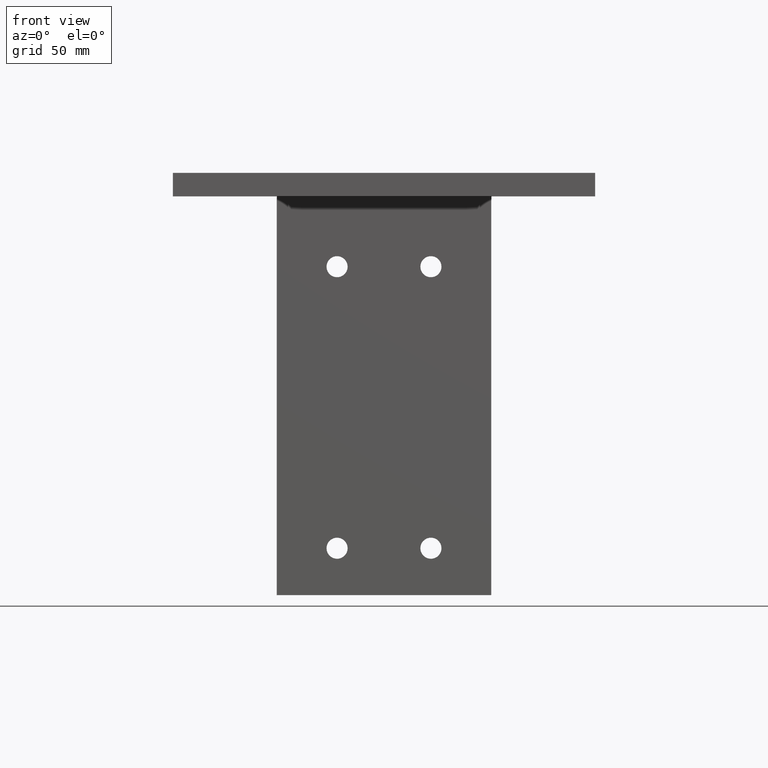
[diagram: clean part render]
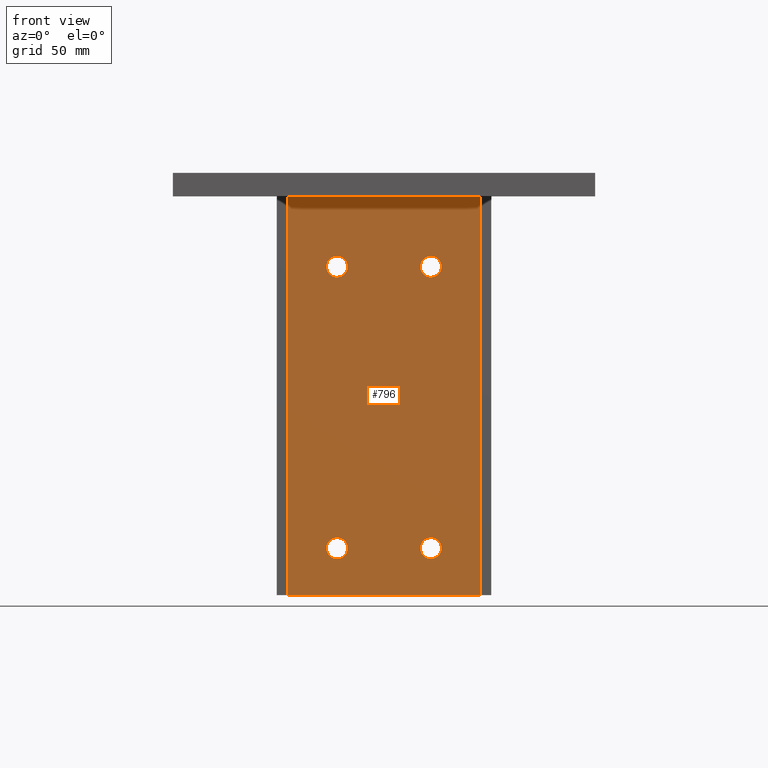
[diagram: same view with one face highlighted and labeled with its STEP entity id]
A machine part, front view. The second image highlights one B-rep face of the part: STEP entity #796.
In plain terms, the highlighted planar face has unit normal (0, 1, 0).
Its self-contained STEP definition (entity closure, byte-faithful):
#200 = EDGE_CURVE ( 'NONE', #849, #850, #1151, .T. ) ;
#203 = EDGE_CURVE ( 'NONE', #862, #861, #887, .T. ) ;
#209 = EDGE_CURVE ( 'NONE', #841, #848, #1077, .T. ) ;
#210 = EDGE_CURVE ( 'NONE', #848, #845, #943, .T. ) ;
#218 = EDGE_CURVE ( 'NONE', #839, #236, #830, .T. ) ;
#236 = VERTEX_POINT ( 'NONE', #1263 ) ;
#246 = CARTESIAN_POINT ( 'NONE',  ( -61.00000000000000000, 30.00000000000000000, 0.0000000000000000000 ) ) ;
#247 = DIRECTION ( 'NONE',  ( -0.0000000000000000000, 0.0000000000000000000, -1.000000000000000000 ) ) ;
#248 = DIRECTION ( 'NONE',  ( 1.000000000000000000, 0.0000000000000000000, 0.0000000000000000000 ) ) ;
#262 = CARTESIAN_POINT ( 'NONE',  ( 0.0000000000000000000, 85.00000000000000000, 0.0000000000000000000 ) ) ;
#263 = DIRECTION ( 'NONE',  ( 0.0000000000000000000, 1.000000000000000000, 0.0000000000000000000 ) ) ;
#268 = CARTESIAN_POINT ( 'NONE',  ( -41.00000000000000000, 170.0000000000000000, 0.0000000000000000000 ) ) ;
#269 = DIRECTION ( 'NONE',  ( -1.000000000000000000, -0.0000000000000000000, -0.0000000000000000000 ) ) ;
#273 = CARTESIAN_POINT ( 'NONE',  ( -21.00000000000000000, 150.0000000000000000, 0.0000000000000000000 ) ) ;
#274 = DIRECTION ( 'NONE',  ( -0.0000000000000000000, 0.0000000000000000000, -1.000000000000000000 ) ) ;
#275 = DIRECTION ( 'NONE',  ( 1.000000000000000000, 0.0000000000000000000, 0.0000000000000000000 ) ) ;
#276 = CARTESIAN_POINT ( 'NONE',  ( -25.50000000000000400, 150.0000000000000000, 0.0000000000000000000 ) ) ;
#315 = PLANE ( 'NONE',  #1305 ) ;
#316 = CARTESIAN_POINT ( 'NONE',  ( -82.00000000000000000, 0.0000000000000000000, 0.0000000000000000000 ) ) ;
#317 = DIRECTION ( 'NONE',  ( 0.0000000000000000000, 0.0000000000000000000, 1.000000000000000000 ) ) ;
#318 = DIRECTION ( 'NONE',  ( 1.000000000000000000, 0.0000000000000000000, 0.0000000000000000000 ) ) ;
#321 = FACE_BOUND ( 'NONE', #1155, .T. ) ;
#322 = FACE_BOUND ( 'NONE', #1158, .T. ) ;
#323 = FACE_OUTER_BOUND ( 'NONE', #1159, .T. ) ;
#335 = FACE_BOUND ( 'NONE', #1157, .T. ) ;
#570 = AXIS2_PLACEMENT_3D ( 'NONE', #246, #247, #248 ) ;
#573 = AXIS2_PLACEMENT_3D ( 'NONE', #1282, #1283, #1284 ) ;
#574 = AXIS2_PLACEMENT_3D ( 'NONE', #1273, #1274, #1275 ) ;
#576 = AXIS2_PLACEMENT_3D ( 'NONE', #1267, #1268, #1269 ) ;
#577 = AXIS2_PLACEMENT_3D ( 'NONE', #1260, #1261, #1262 ) ;
#582 = AXIS2_PLACEMENT_3D ( 'NONE', #624, #625, #626 ) ;
#584 = AXIS2_PLACEMENT_3D ( 'NONE', #982, #984, #985 ) ;
#599 = EDGE_CURVE ( 'NONE', #861, #862, #831, .T. ) ;
#601 = EDGE_CURVE ( 'NONE', #838, #659, #835, .T. ) ;
#605 = EDGE_CURVE ( 'NONE', #850, #849, #854, .T. ) ;
#611 = EDGE_CURVE ( 'NONE', #236, #839, #1156, .T. ) ;
#618 = EDGE_CURVE ( 'NONE', #845, #847, #780, .T. ) ;
#621 = EDGE_CURVE ( 'NONE', #847, #841, #774, .T. ) ;
#623 = EDGE_CURVE ( 'NONE', #659, #838, #753, .T. ) ;
#624 = CARTESIAN_POINT ( 'NONE',  ( -21.00000000000000000, 30.00000000000000000, 0.0000000000000000000 ) ) ;
#625 = DIRECTION ( 'NONE',  ( -0.0000000000000000000, 0.0000000000000000000, -1.000000000000000000 ) ) ;
#626 = DIRECTION ( 'NONE',  ( 1.000000000000000000, 0.0000000000000000000, 0.0000000000000000000 ) ) ;
#640 = CARTESIAN_POINT ( 'NONE',  ( -82.00000000000000000, 85.00000000000000000, 0.0000000000000000000 ) ) ;
#641 = DIRECTION ( 'NONE',  ( -0.0000000000000000000, -1.000000000000000000, -0.0000000000000000000 ) ) ;
#642 = CARTESIAN_POINT ( 'NONE',  ( -41.00000000000000000, 0.0000000000000000000, 0.0000000000000000000 ) ) ;
#643 = DIRECTION ( 'NONE',  ( 1.000000000000000000, 0.0000000000000000000, 0.0000000000000000000 ) ) ;
#659 = VERTEX_POINT ( 'NONE', #276 ) ;
#749 = VECTOR ( 'NONE', #269, 1000.000000000000000 ) ;
#753 = CIRCLE ( 'NONE', #1317, 4.500000000000000900 ) ;
#774 = LINE ( 'NONE', #268, #749 ) ;
#778 = VECTOR ( 'NONE', #263, 1000.000000000000000 ) ;
#780 = LINE ( 'NONE', #262, #778 ) ;
#796 = ADVANCED_FACE ( 'NONE', ( #942, #321, #335, #322, #323 ), #315, .F. ) ;
#830 = CIRCLE ( 'NONE', #577, 4.499999999999997300 ) ;
#831 = CIRCLE ( 'NONE', #576, 4.500000000000000900 ) ;
#835 = CIRCLE ( 'NONE', #574, 4.500000000000000900 ) ;
#838 = VERTEX_POINT ( 'NONE', #1228 ) ;
#839 = VERTEX_POINT ( 'NONE', #1229 ) ;
#841 = VERTEX_POINT ( 'NONE', #1231 ) ;
#845 = VERTEX_POINT ( 'NONE', #1233 ) ;
#847 = VERTEX_POINT ( 'NONE', #1234 ) ;
#848 = VERTEX_POINT ( 'NONE', #1235 ) ;
#849 = VERTEX_POINT ( 'NONE', #1236 ) ;
#850 = VERTEX_POINT ( 'NONE', #1237 ) ;
#854 = CIRCLE ( 'NONE', #573, 4.499999999999997300 ) ;
#861 = VERTEX_POINT ( 'NONE', #1244 ) ;
#862 = VERTEX_POINT ( 'NONE', #1245 ) ;
#872 = ORIENTED_EDGE ( 'NONE', *, *, #605, .F. ) ;
#887 = CIRCLE ( 'NONE', #582, 4.500000000000000900 ) ;
#892 = ORIENTED_EDGE ( 'NONE', *, *, #200, .F. ) ;
#897 = ORIENTED_EDGE ( 'NONE', *, *, #601, .F. ) ;
#904 = ORIENTED_EDGE ( 'NONE', *, *, #623, .F. ) ;
#905 = ORIENTED_EDGE ( 'NONE', *, *, #611, .F. ) ;
#922 = ORIENTED_EDGE ( 'NONE', *, *, #618, .F. ) ;
#940 = VECTOR ( 'NONE', #643, 1000.000000000000000 ) ;
#942 = FACE_BOUND ( 'NONE', #1154, .T. ) ;
#943 = LINE ( 'NONE', #642, #940 ) ;
#982 = CARTESIAN_POINT ( 'NONE',  ( -61.00000000000000000, 150.0000000000000000, 0.0000000000000000000 ) ) ;
#984 = DIRECTION ( 'NONE',  ( -0.0000000000000000000, 0.0000000000000000000, -1.000000000000000000 ) ) ;
#985 = DIRECTION ( 'NONE',  ( 1.000000000000000000, 0.0000000000000000000, 0.0000000000000000000 ) ) ;
#988 = ORIENTED_EDGE ( 'NONE', *, *, #218, .F. ) ;
#989 = ORIENTED_EDGE ( 'NONE', *, *, #599, .F. ) ;
#1077 = LINE ( 'NONE', #640, #1163 ) ;
#1096 = ORIENTED_EDGE ( 'NONE', *, *, #210, .F. ) ;
#1098 = ORIENTED_EDGE ( 'NONE', *, *, #209, .F. ) ;
#1099 = ORIENTED_EDGE ( 'NONE', *, *, #621, .F. ) ;
#1149 = ORIENTED_EDGE ( 'NONE', *, *, #203, .F. ) ;
#1151 = CIRCLE ( 'NONE', #584, 4.499999999999997300 ) ;
#1154 = EDGE_LOOP ( 'NONE', ( #872, #892 ) ) ;
#1155 = EDGE_LOOP ( 'NONE', ( #897, #904 ) ) ;
#1156 = CIRCLE ( 'NONE', #570, 4.499999999999997300 ) ;
#1157 = EDGE_LOOP ( 'NONE', ( #905, #988 ) ) ;
#1158 = EDGE_LOOP ( 'NONE', ( #989, #1149 ) ) ;
#1159 = EDGE_LOOP ( 'NONE', ( #1096, #1098, #1099, #922 ) ) ;
#1163 = VECTOR ( 'NONE', #641, 1000.000000000000000 ) ;
#1228 = CARTESIAN_POINT ( 'NONE',  ( -16.50000000000000000, 150.0000000000000000, 0.0000000000000000000 ) ) ;
#1229 = CARTESIAN_POINT ( 'NONE',  ( -65.50000000000000000, 30.00000000000000000, 0.0000000000000000000 ) ) ;
#1231 = CARTESIAN_POINT ( 'NONE',  ( -82.00000000000000000, 170.0000000000000000, 0.0000000000000000000 ) ) ;
#1233 = CARTESIAN_POINT ( 'NONE',  ( 0.0000000000000000000, 0.0000000000000000000, 0.0000000000000000000 ) ) ;
#1234 = CARTESIAN_POINT ( 'NONE',  ( 0.0000000000000000000, 170.0000000000000000, 0.0000000000000000000 ) ) ;
#1235 = CARTESIAN_POINT ( 'NONE',  ( -82.00000000000000000, 0.0000000000000000000, 0.0000000000000000000 ) ) ;
#1236 = CARTESIAN_POINT ( 'NONE',  ( -65.50000000000000000, 150.0000000000000000, 0.0000000000000000000 ) ) ;
#1237 = CARTESIAN_POINT ( 'NONE',  ( -56.50000000000000000, 150.0000000000000000, 0.0000000000000000000 ) ) ;
#1244 = CARTESIAN_POINT ( 'NONE',  ( -16.50000000000000000, 30.00000000000000000, 0.0000000000000000000 ) ) ;
#1245 = CARTESIAN_POINT ( 'NONE',  ( -25.50000000000000400, 30.00000000000000000, 0.0000000000000000000 ) ) ;
#1260 = CARTESIAN_POINT ( 'NONE',  ( -61.00000000000000000, 30.00000000000000000, 0.0000000000000000000 ) ) ;
#1261 = DIRECTION ( 'NONE',  ( -0.0000000000000000000, 0.0000000000000000000, -1.000000000000000000 ) ) ;
#1262 = DIRECTION ( 'NONE',  ( 1.000000000000000000, 0.0000000000000000000, 0.0000000000000000000 ) ) ;
#1263 = CARTESIAN_POINT ( 'NONE',  ( -56.50000000000000000, 30.00000000000000000, 0.0000000000000000000 ) ) ;
#1267 = CARTESIAN_POINT ( 'NONE',  ( -21.00000000000000000, 30.00000000000000000, 0.0000000000000000000 ) ) ;
#1268 = DIRECTION ( 'NONE',  ( -0.0000000000000000000, 0.0000000000000000000, -1.000000000000000000 ) ) ;
#1269 = DIRECTION ( 'NONE',  ( 1.000000000000000000, 0.0000000000000000000, 0.0000000000000000000 ) ) ;
#1273 = CARTESIAN_POINT ( 'NONE',  ( -21.00000000000000000, 150.0000000000000000, 0.0000000000000000000 ) ) ;
#1274 = DIRECTION ( 'NONE',  ( -0.0000000000000000000, 0.0000000000000000000, -1.000000000000000000 ) ) ;
#1275 = DIRECTION ( 'NONE',  ( 1.000000000000000000, 0.0000000000000000000, 0.0000000000000000000 ) ) ;
#1282 = CARTESIAN_POINT ( 'NONE',  ( -61.00000000000000000, 150.0000000000000000, 0.0000000000000000000 ) ) ;
#1283 = DIRECTION ( 'NONE',  ( -0.0000000000000000000, 0.0000000000000000000, -1.000000000000000000 ) ) ;
#1284 = DIRECTION ( 'NONE',  ( 1.000000000000000000, 0.0000000000000000000, 0.0000000000000000000 ) ) ;
#1305 = AXIS2_PLACEMENT_3D ( 'NONE', #316, #317, #318 ) ;
#1317 = AXIS2_PLACEMENT_3D ( 'NONE', #273, #274, #275 ) ;